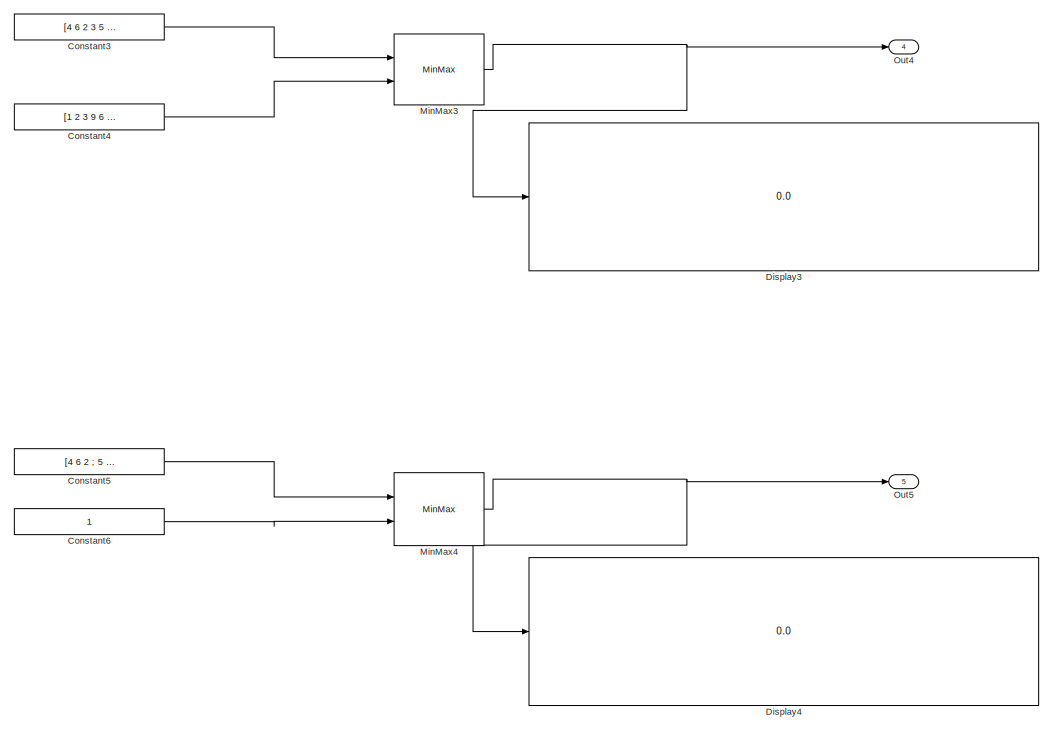
[diagram: root canvas - part 1/3, top right region]
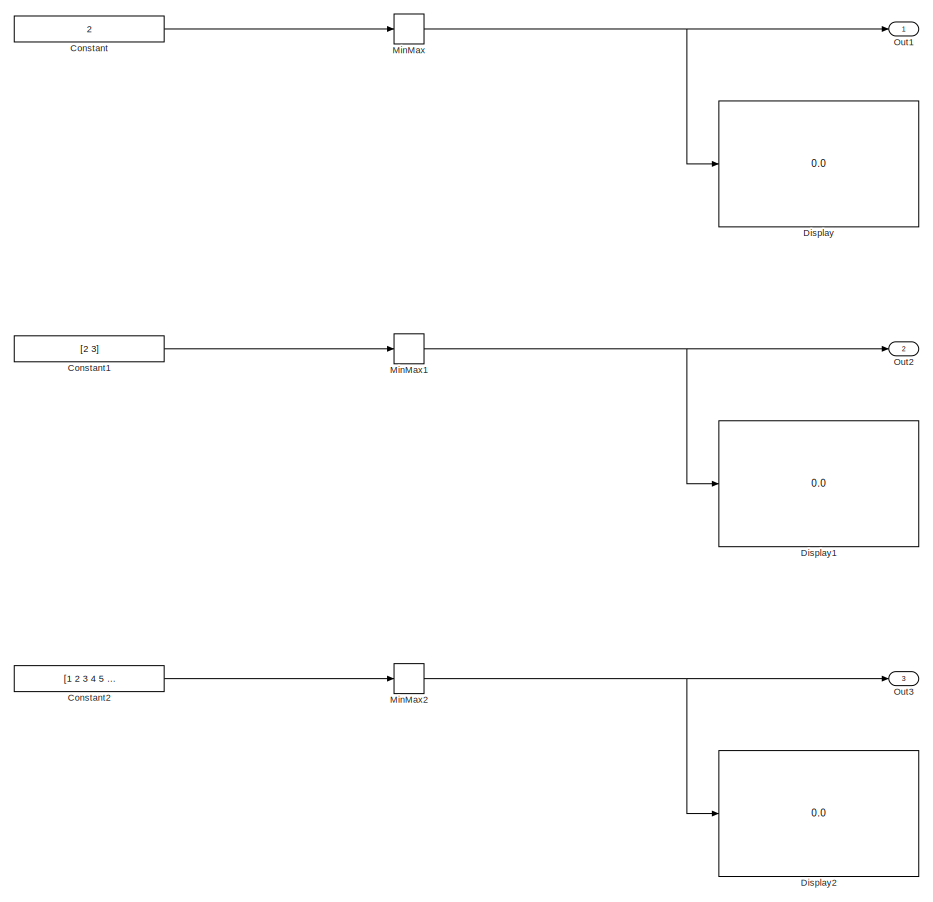
[diagram: root canvas - part 2/3, middle left region]
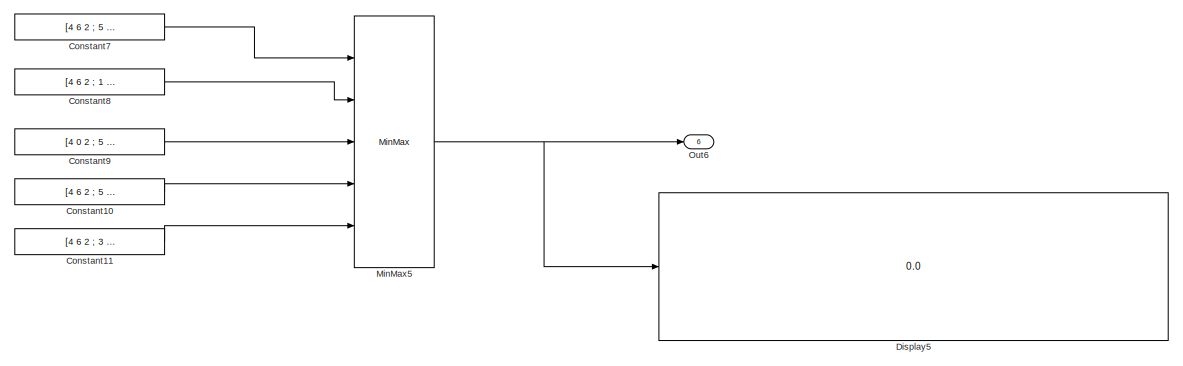
[diagram: root canvas - part 3/3, bottom right region]
MODEL slx_b8c761b4ed19
KIND model
CONFIG AbsTol = auto
CONFIG EnableMultiTasking = on
CONFIG FixedStep = 0.200000
CONFIG MaxStep = auto
CONFIG MinStep = auto
CONFIG RelTol = 1e-3
CONFIG SampleTimeConstraint = Unconstrained
CONFIG Solver = FixedStepDiscrete
CONFIG SolverName = FixedStepDiscrete
CONFIG StartTime = 0.0
CONFIG StopTime = 10.0
WORKSPACE source: MAT-file member
WORKSPACE input_struct: struct (value not decoded)
BLOCK [Constant] Constant
  Value = 2
BLOCK [Constant] Constant1
  OutDataTypeStr = int32
  Value = [2 3]
BLOCK [Constant] Constant10
  Value = [4 6 2 ; 5 7 2]
BLOCK [Constant] Constant11
  Value = [4 6 2 ; 3 7 9]
BLOCK [Constant] Constant2
  Value = [1 2 3 4 5 6]
BLOCK [Constant] Constant3
  Value = [4 6 2 3 5 7 9]
BLOCK [Constant] Constant4
  Value = [1 2 3 9 6 5 4]
BLOCK [Constant] Constant5
  Value = [4 6 2 ; 5 7 9]
BLOCK [Constant] Constant6
BLOCK [Constant] Constant7
  Value = [4 6 2 ; 5 7 9]
BLOCK [Constant] Constant8
  Value = [4 6 2 ; 1 7 9]
BLOCK [Constant] Constant9
  Value = [4 0 2 ; 5 7 9]
BLOCK [Display] Display
  Decimation = 1
  Ports = [1]
BLOCK [Display] Display1
  Decimation = 1
  Ports = [1]
BLOCK [Display] Display2
  Decimation = 1
  Ports = [1]
BLOCK [Display] Display3
  Decimation = 1
  Ports = [1]
BLOCK [Display] Display4
  Decimation = 1
  Ports = [1]
BLOCK [Display] Display5
  Decimation = 1
  Ports = [1]
BLOCK [MinMax] MinMax
  InputSameDT = off
  Ports = [1, 1]
  SaturateOnIntegerOverflow = off
BLOCK [MinMax] MinMax1
  Function = max
  InputSameDT = off
  Ports = [1, 1]
  SaturateOnIntegerOverflow = off
BLOCK [MinMax] MinMax2
  InputSameDT = off
  Ports = [1, 1]
  SaturateOnIntegerOverflow = off
BLOCK [MinMax] MinMax3
  Function = max
  InputSameDT = off
  Inputs = 2
  Ports = [2, 1]
  SaturateOnIntegerOverflow = off
BLOCK [MinMax] MinMax4
  InputSameDT = off
  Inputs = 2
  Ports = [2, 1]
  SaturateOnIntegerOverflow = off
BLOCK [MinMax] MinMax5
  Function = max
  InputSameDT = off
  Inputs = 5
  Ports = [5, 1]
  SaturateOnIntegerOverflow = off
BLOCK [Outport] Out1
  IconDisplay = Port number
BLOCK [Outport] Out2
  IconDisplay = Port number
  Port = 2
BLOCK [Outport] Out3
  IconDisplay = Port number
  Port = 3
BLOCK [Outport] Out4
  IconDisplay = Port number
  Port = 4
BLOCK [Outport] Out5
  IconDisplay = Port number
  Port = 5
BLOCK [Outport] Out6
  IconDisplay = Port number
  Port = 6
LINE Constant10:1 -> MinMax5:4
LINE Constant11:1 -> MinMax5:5
LINE Constant1:1 -> MinMax1:1
LINE Constant2:1 -> MinMax2:1
LINE Constant3:1 -> MinMax3:1
LINE Constant4:1 -> MinMax3:2
LINE Constant5:1 -> MinMax4:1
LINE Constant6:1 -> MinMax4:2
LINE Constant7:1 -> MinMax5:1
LINE Constant8:1 -> MinMax5:2
LINE Constant9:1 -> MinMax5:3
LINE Constant:1 -> MinMax:1
NET MinMax1:1 -> Display1:1, Out2:1
NET MinMax2:1 -> Display2:1, Out3:1
NET MinMax3:1 -> Display3:1, Out4:1
NET MinMax4:1 -> Display4:1, Out5:1
NET MinMax5:1 -> Display5:1, Out6:1
NET MinMax:1 -> Display:1, Out1:1
note: NET lines group one-source signal fan-out (src -> all destinations, sorted); 1:1 wires keep LINE
